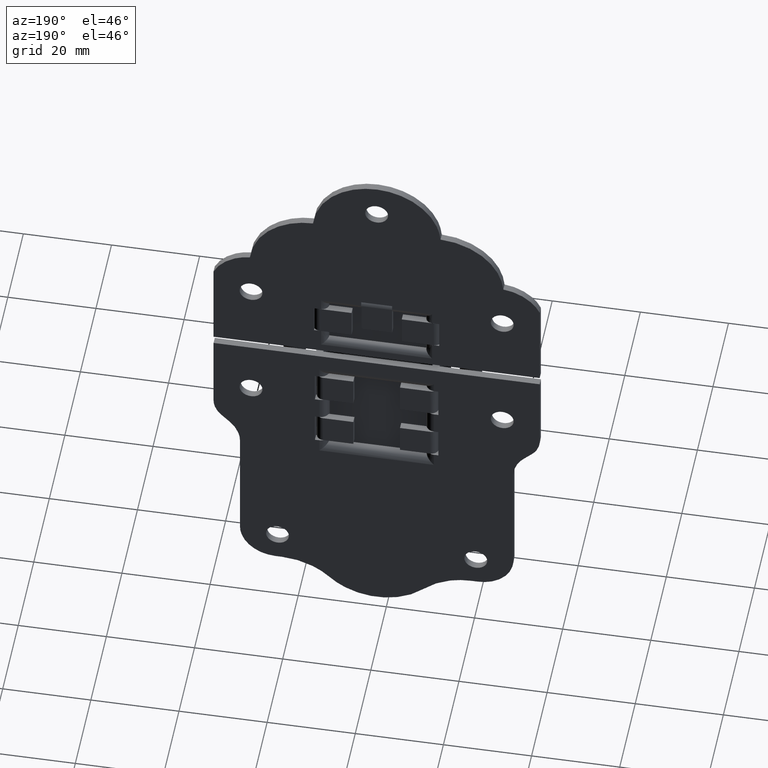
[diagram: clean part render]
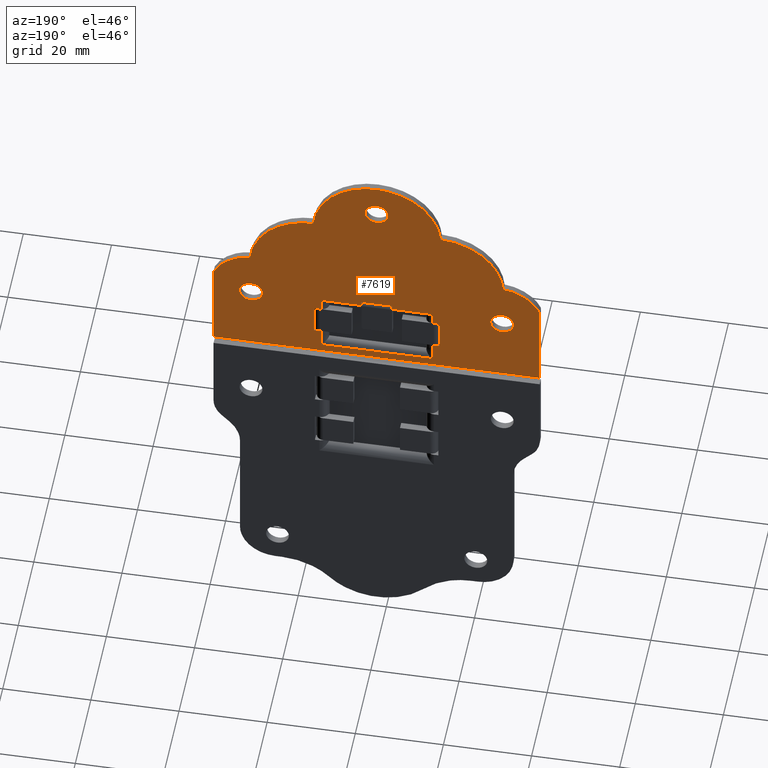
[diagram: same view with one face highlighted and labeled with its STEP entity id]
A machine part, auxiliary view. The second image highlights one B-rep face of the part: STEP entity #7619.
In plain terms, the highlighted face is a freeform B-spline surface patch.
Its self-contained STEP definition (entity closure, byte-faithful):
#3076=CARTESIAN_POINT('',(31.095150475863989,12.500000000000000,44.841273796671999));
#3077=VERTEX_POINT('',#3076);
#3083=CARTESIAN_POINT('',(28.500000000000000,12.500000000000000,42.399999999999999));
#3084=VERTEX_POINT('',#3083);
#3085=CARTESIAN_POINT('',(28.500000000000000,12.500000000000000,42.399999999999999));
#3086=CARTESIAN_POINT('',(30.945835772940004,12.499999999999996,42.399999999999999));
#3087=CARTESIAN_POINT('',(31.095150475863985,12.500000000000004,44.841273796672006));
#3095=(BOUNDED_CURVE()B_SPLINE_CURVE(2,(#3085,#3086,#3087),.UNSPECIFIED.,.F.,.U.)B_SPLINE_CURVE_WITH_KNOTS((3,3),(0.500000000000000,0.739332962170511),.UNSPECIFIED.)CURVE()GEOMETRIC_REPRESENTATION_ITEM()RATIONAL_B_SPLINE_CURVE((1.0,0.719603993366883,0.976072041520055))REPRESENTATION_ITEM(''));
#3096=EDGE_CURVE('',#3084,#3077,#3095,.T.);
#3098=CARTESIAN_POINT('',(25.918175231523769,12.500000000000000,45.306889010690611));
#3099=VERTEX_POINT('',#3098);
#3100=CARTESIAN_POINT('',(25.918175231523772,12.499999999999996,45.306889010690611));
#3101=CARTESIAN_POINT('',(25.900000000000002,12.500000000000000,45.153982711684179));
#3102=CARTESIAN_POINT('',(25.899999999999999,12.500000000000000,45.0));
#3103=CARTESIAN_POINT('',(25.899999999999999,12.500000000000000,42.400000000000006));
#3104=CARTESIAN_POINT('',(28.500000000000000,12.500000000000000,42.399999999999999));
#3112=(BOUNDED_CURVE()B_SPLINE_CURVE(2,(#3100,#3101,#3102,#3103,#3104),.UNSPECIFIED.,.F.,.U.)B_SPLINE_CURVE_WITH_KNOTS((3,2,3),(0.229562473439313,0.250000000000000,0.500000000000000),.UNSPECIFIED.)CURVE()GEOMETRIC_REPRESENTATION_ITEM()RATIONAL_B_SPLINE_CURVE((0.956026754038274,0.976055948244220,1.0,0.707106781186548,1.0))REPRESENTATION_ITEM(''));
#3113=EDGE_CURVE('',#3099,#3084,#3112,.T.);
#3157=CARTESIAN_POINT('',(28.500000000000000,12.500000000000000,47.599999999999987));
#3158=VERTEX_POINT('',#3157);
#3159=CARTESIAN_POINT('',(28.500000000000000,12.500000000000000,47.599999999999987));
#3160=CARTESIAN_POINT('',(26.190746233576778,12.500000000000000,47.599999999999987));
#3161=CARTESIAN_POINT('',(25.918175231523776,12.499999999999998,45.306889010690611));
#3169=(BOUNDED_CURVE()B_SPLINE_CURVE(2,(#3159,#3160,#3161),.UNSPECIFIED.,.F.,.U.)B_SPLINE_CURVE_WITH_KNOTS((3,3),(0.0,0.229562473439313),.UNSPECIFIED.)CURVE()GEOMETRIC_REPRESENTATION_ITEM()RATIONAL_B_SPLINE_CURVE((1.0,0.731050832942328,0.956026754038274))REPRESENTATION_ITEM(''));
#3170=EDGE_CURVE('',#3158,#3099,#3169,.T.);
#3172=CARTESIAN_POINT('',(31.095150475863989,12.499999999999998,44.841273796671999));
#3173=CARTESIAN_POINT('',(31.100000000000001,12.499999999999998,44.920562814884775));
#3174=CARTESIAN_POINT('',(31.100000000000001,12.500000000000000,45.0));
#3175=CARTESIAN_POINT('',(31.100000000000001,12.500000000000000,47.599999999999980));
#3176=CARTESIAN_POINT('',(28.500000000000000,12.500000000000000,47.599999999999987));
#3184=(BOUNDED_CURVE()B_SPLINE_CURVE(2,(#3172,#3173,#3174,#3175,#3176),.UNSPECIFIED.,.F.,.U.)B_SPLINE_CURVE_WITH_KNOTS((3,2,3),(0.739332962170510,0.750000000000000,1.0),.UNSPECIFIED.)CURVE()GEOMETRIC_REPRESENTATION_ITEM()RATIONAL_B_SPLINE_CURVE((0.976072041520053,0.987502787819663,1.0,0.707106781186548,1.0))REPRESENTATION_ITEM(''));
#3185=EDGE_CURVE('',#3077,#3158,#3184,.T.);
#3262=CARTESIAN_POINT('',(2.595150475863986,12.500000000000000,74.841273796671999));
#3263=VERTEX_POINT('',#3262);
#3269=CARTESIAN_POINT('',(0.0,12.500000000000000,72.399999999999991));
#3270=VERTEX_POINT('',#3269);
#3271=CARTESIAN_POINT('',(0.0,12.500000000000000,72.399999999999991));
#3272=CARTESIAN_POINT('',(2.445835772940012,12.499999999999996,72.400000000000006));
#3273=CARTESIAN_POINT('',(2.595150475863987,12.500000000000004,74.841273796671999));
#3281=(BOUNDED_CURVE()B_SPLINE_CURVE(2,(#3271,#3272,#3273),.UNSPECIFIED.,.F.,.U.)B_SPLINE_CURVE_WITH_KNOTS((3,3),(0.500000000000000,0.739332962170511),.UNSPECIFIED.)CURVE()GEOMETRIC_REPRESENTATION_ITEM()RATIONAL_B_SPLINE_CURVE((1.0,0.719603993366883,0.976072041520055))REPRESENTATION_ITEM(''));
#3282=EDGE_CURVE('',#3270,#3263,#3281,.T.);
#3284=CARTESIAN_POINT('',(-2.581824768476229,12.500000000000000,75.306889010690611));
#3285=VERTEX_POINT('',#3284);
#3286=CARTESIAN_POINT('',(-2.581824768476229,12.500000000000004,75.306889010690611));
#3287=CARTESIAN_POINT('',(-2.600000000000000,12.500000000000002,75.153982711684165));
#3288=CARTESIAN_POINT('',(-2.600000000000000,12.500000000000000,75.0));
#3289=CARTESIAN_POINT('',(-2.600000000000001,12.500000000000000,72.399999999999991));
#3290=CARTESIAN_POINT('',(0.0,12.500000000000000,72.399999999999991));
#3298=(BOUNDED_CURVE()B_SPLINE_CURVE(2,(#3286,#3287,#3288,#3289,#3290),.UNSPECIFIED.,.F.,.U.)B_SPLINE_CURVE_WITH_KNOTS((3,2,3),(0.229562473439314,0.250000000000000,0.500000000000000),.UNSPECIFIED.)CURVE()GEOMETRIC_REPRESENTATION_ITEM()RATIONAL_B_SPLINE_CURVE((0.956026754038275,0.976055948244221,1.0,0.707106781186548,1.0))REPRESENTATION_ITEM(''));
#3299=EDGE_CURVE('',#3285,#3270,#3298,.T.);
#3343=CARTESIAN_POINT('',(0.0,12.500000000000000,77.600000000000009));
#3344=VERTEX_POINT('',#3343);
#3345=CARTESIAN_POINT('',(0.0,12.500000000000000,77.600000000000009));
#3346=CARTESIAN_POINT('',(-2.309253766423237,12.500000000000002,77.600000000000009));
#3347=CARTESIAN_POINT('',(-2.581824768476229,12.500000000000004,75.306889010690611));
#3355=(BOUNDED_CURVE()B_SPLINE_CURVE(2,(#3345,#3346,#3347),.UNSPECIFIED.,.F.,.U.)B_SPLINE_CURVE_WITH_KNOTS((3,3),(0.0,0.229562473439314),.UNSPECIFIED.)CURVE()GEOMETRIC_REPRESENTATION_ITEM()RATIONAL_B_SPLINE_CURVE((1.0,0.731050832942327,0.956026754038275))REPRESENTATION_ITEM(''));
#3356=EDGE_CURVE('',#3344,#3285,#3355,.T.);
#3358=CARTESIAN_POINT('',(2.595150475863987,12.500000000000000,74.841273796671999));
#3359=CARTESIAN_POINT('',(2.600000000000001,12.500000000000000,74.920562814884789));
#3360=CARTESIAN_POINT('',(2.600000000000000,12.500000000000000,75.0));
#3361=CARTESIAN_POINT('',(2.600000000000001,12.500000000000000,77.600000000000009));
#3362=CARTESIAN_POINT('',(0.0,12.500000000000000,77.600000000000009));
#3370=(BOUNDED_CURVE()B_SPLINE_CURVE(2,(#3358,#3359,#3360,#3361,#3362),.UNSPECIFIED.,.F.,.U.)B_SPLINE_CURVE_WITH_KNOTS((3,2,3),(0.739332962170510,0.750000000000000,1.0),.UNSPECIFIED.)CURVE()GEOMETRIC_REPRESENTATION_ITEM()RATIONAL_B_SPLINE_CURVE((0.976072041520053,0.987502787819663,1.0,0.707106781186548,1.0))REPRESENTATION_ITEM(''));
#3371=EDGE_CURVE('',#3263,#3344,#3370,.T.);
#3448=CARTESIAN_POINT('',(-25.904849524136011,12.500000000000000,44.841273796671999));
#3449=VERTEX_POINT('',#3448);
#3455=CARTESIAN_POINT('',(-28.500000000000000,12.500000000000000,42.399999999999999));
#3456=VERTEX_POINT('',#3455);
#3457=CARTESIAN_POINT('',(-28.500000000000000,12.500000000000000,42.399999999999999));
#3458=CARTESIAN_POINT('',(-26.054164227059982,12.499999999999996,42.399999999999999));
#3459=CARTESIAN_POINT('',(-25.904849524136008,12.500000000000004,44.841273796672006));
#3467=(BOUNDED_CURVE()B_SPLINE_CURVE(2,(#3457,#3458,#3459),.UNSPECIFIED.,.F.,.U.)B_SPLINE_CURVE_WITH_KNOTS((3,3),(0.500000000000000,0.739332962170511),.UNSPECIFIED.)CURVE()GEOMETRIC_REPRESENTATION_ITEM()RATIONAL_B_SPLINE_CURVE((1.0,0.719603993366883,0.976072041520055))REPRESENTATION_ITEM(''));
#3468=EDGE_CURVE('',#3456,#3449,#3467,.T.);
#3470=CARTESIAN_POINT('',(-31.081824768476231,12.500000000000000,45.306889010690611));
#3471=VERTEX_POINT('',#3470);
#3472=CARTESIAN_POINT('',(-31.081824768476235,12.499999999999995,45.306889010690611));
#3473=CARTESIAN_POINT('',(-31.100000000000005,12.499999999999998,45.153982711684186));
#3474=CARTESIAN_POINT('',(-31.100000000000001,12.500000000000000,45.0));
#3475=CARTESIAN_POINT('',(-31.100000000000001,12.500000000000000,42.400000000000006));
#3476=CARTESIAN_POINT('',(-28.500000000000000,12.500000000000000,42.399999999999999));
#3484=(BOUNDED_CURVE()B_SPLINE_CURVE(2,(#3472,#3473,#3474,#3475,#3476),.UNSPECIFIED.,.F.,.U.)B_SPLINE_CURVE_WITH_KNOTS((3,2,3),(0.229562473439313,0.250000000000000,0.500000000000000),.UNSPECIFIED.)CURVE()GEOMETRIC_REPRESENTATION_ITEM()RATIONAL_B_SPLINE_CURVE((0.956026754038274,0.976055948244220,1.0,0.707106781186548,1.0))REPRESENTATION_ITEM(''));
#3485=EDGE_CURVE('',#3471,#3456,#3484,.T.);
#3529=CARTESIAN_POINT('',(-28.500000000000000,12.500000000000000,47.599999999999987));
#3530=VERTEX_POINT('',#3529);
#3531=CARTESIAN_POINT('',(-28.500000000000000,12.500000000000000,47.599999999999987));
#3532=CARTESIAN_POINT('',(-30.809253766423229,12.500000000000000,47.599999999999994));
#3533=CARTESIAN_POINT('',(-31.081824768476235,12.499999999999995,45.306889010690611));
#3541=(BOUNDED_CURVE()B_SPLINE_CURVE(2,(#3531,#3532,#3533),.UNSPECIFIED.,.F.,.U.)B_SPLINE_CURVE_WITH_KNOTS((3,3),(0.0,0.229562473439313),.UNSPECIFIED.)CURVE()GEOMETRIC_REPRESENTATION_ITEM()RATIONAL_B_SPLINE_CURVE((1.0,0.731050832942327,0.956026754038274))REPRESENTATION_ITEM(''));
#3542=EDGE_CURVE('',#3530,#3471,#3541,.T.);
#3544=CARTESIAN_POINT('',(-25.904849524136011,12.499999999999998,44.841273796671999));
#3545=CARTESIAN_POINT('',(-25.900000000000002,12.499999999999998,44.920562814884775));
#3546=CARTESIAN_POINT('',(-25.899999999999999,12.500000000000000,45.0));
#3547=CARTESIAN_POINT('',(-25.899999999999999,12.500000000000000,47.599999999999980));
#3548=CARTESIAN_POINT('',(-28.500000000000000,12.500000000000000,47.599999999999987));
#3556=(BOUNDED_CURVE()B_SPLINE_CURVE(2,(#3544,#3545,#3546,#3547,#3548),.UNSPECIFIED.,.F.,.U.)B_SPLINE_CURVE_WITH_KNOTS((3,2,3),(0.739332962170510,0.750000000000000,1.0),.UNSPECIFIED.)CURVE()GEOMETRIC_REPRESENTATION_ITEM()RATIONAL_B_SPLINE_CURVE((0.976072041520053,0.987502787819663,1.0,0.707106781186548,1.0))REPRESENTATION_ITEM(''));
#3557=EDGE_CURVE('',#3449,#3530,#3556,.T.);
#3592=CARTESIAN_POINT('',(-12.600000000000000,12.500000000000000,45.100000000000001));
#3593=VERTEX_POINT('',#3592);
#3638=CARTESIAN_POINT('',(-12.600000000000000,12.500000000000000,42.259999999999998));
#3639=VERTEX_POINT('',#3638);
#3653=CARTESIAN_POINT('',(-12.600000000000000,12.500000000000000,45.100000000000001));
#3654=CARTESIAN_POINT('',(-12.600000000000000,12.500000000000000,42.259999999999998));
#3655=QUASI_UNIFORM_CURVE('',1,(#3653,#3654),.UNSPECIFIED.,.F.,.U.);
#3656=EDGE_CURVE('',#3593,#3639,#3655,.T.);
#3698=CARTESIAN_POINT('',(-3.510000000000000,12.500000000000000,45.100000000000001));
#3699=VERTEX_POINT('',#3698);
#3700=CARTESIAN_POINT('',(-3.510000000000000,12.500000000000000,45.100000000000001));
#3701=CARTESIAN_POINT('',(-12.600000000000000,12.500000000000000,45.100000000000001));
#3702=QUASI_UNIFORM_CURVE('',1,(#3700,#3701),.UNSPECIFIED.,.F.,.U.);
#3703=EDGE_CURVE('',#3699,#3593,#3702,.T.);
#3949=CARTESIAN_POINT('',(12.600000000000000,12.500000000000000,45.100000000000001));
#3950=VERTEX_POINT('',#3949);
#3964=CARTESIAN_POINT('',(12.600000000000000,12.500000000000000,42.259999999999998));
#3965=VERTEX_POINT('',#3964);
#3966=CARTESIAN_POINT('',(12.600000000000000,12.500000000000000,42.259999999999998));
#3967=CARTESIAN_POINT('',(12.600000000000000,12.500000000000000,45.100000000000001));
#3968=QUASI_UNIFORM_CURVE('',1,(#3966,#3967),.UNSPECIFIED.,.F.,.U.);
#3969=EDGE_CURVE('',#3965,#3950,#3968,.T.);
#4008=CARTESIAN_POINT('',(3.510000000000000,12.500000000000000,45.100000000000001));
#4009=VERTEX_POINT('',#4008);
#4025=CARTESIAN_POINT('',(12.600000000000000,12.500000000000000,45.100000000000001));
#4026=CARTESIAN_POINT('',(3.510000000000000,12.500000000000000,45.100000000000001));
#4027=QUASI_UNIFORM_CURVE('',1,(#4025,#4026),.UNSPECIFIED.,.F.,.U.);
#4028=EDGE_CURVE('',#3950,#4009,#4027,.T.);
#4075=CARTESIAN_POINT('',(12.600000000000000,12.500000000000000,30.899999999999999));
#4076=VERTEX_POINT('',#4075);
#4121=CARTESIAN_POINT('',(12.600000000000000,12.500000000000000,35.240000000000002));
#4122=VERTEX_POINT('',#4121);
#4136=CARTESIAN_POINT('',(12.600000000000000,12.500000000000000,30.899999999999999));
#4137=CARTESIAN_POINT('',(12.600000000000000,12.500000000000000,35.240000000000002));
#4138=QUASI_UNIFORM_CURVE('',1,(#4136,#4137),.UNSPECIFIED.,.F.,.U.);
#4139=EDGE_CURVE('',#4076,#4122,#4138,.T.);
#4158=CARTESIAN_POINT('',(-12.600000000000000,12.500000000000000,30.899999999999999));
#4159=VERTEX_POINT('',#4158);
#4181=CARTESIAN_POINT('',(-12.600000000000000,12.500000000000000,30.899999999999999));
#4182=CARTESIAN_POINT('',(12.600000000000000,12.500000000000000,30.899999999999999));
#4183=QUASI_UNIFORM_CURVE('',1,(#4181,#4182),.UNSPECIFIED.,.F.,.U.);
#4184=EDGE_CURVE('',#4159,#4076,#4183,.T.);
#4226=CARTESIAN_POINT('',(-12.600000000000000,12.500000000000000,35.240000000000002));
#4227=VERTEX_POINT('',#4226);
#4228=CARTESIAN_POINT('',(-12.600000000000000,12.500000000000000,35.240000000000002));
#4229=CARTESIAN_POINT('',(-12.600000000000000,12.500000000000000,30.899999999999999));
#4230=QUASI_UNIFORM_CURVE('',1,(#4228,#4229),.UNSPECIFIED.,.F.,.U.);
#4231=EDGE_CURVE('',#4227,#4159,#4230,.T.);
#6540=CARTESIAN_POINT('',(-14.210000000000001,12.500000000000000,35.240000000000002));
#6541=VERTEX_POINT('',#6540);
#6542=CARTESIAN_POINT('',(-12.600000000000000,12.500000000000000,35.240000000000002));
#6543=CARTESIAN_POINT('',(-14.210000000000001,12.500000000000000,35.240000000000002));
#6544=QUASI_UNIFORM_CURVE('',1,(#6542,#6543),.UNSPECIFIED.,.F.,.U.);
#6545=EDGE_CURVE('',#4227,#6541,#6544,.T.);
#6560=CARTESIAN_POINT('',(-14.210000000000001,12.500000000000000,42.259999999999998));
#6561=VERTEX_POINT('',#6560);
#6562=CARTESIAN_POINT('',(-14.210000000000001,12.500000000000000,42.259999999999998));
#6563=CARTESIAN_POINT('',(-12.600000000000000,12.500000000000000,42.259999999999998));
#6564=QUASI_UNIFORM_CURVE('',1,(#6562,#6563),.UNSPECIFIED.,.F.,.U.);
#6565=EDGE_CURVE('',#6561,#3639,#6564,.T.);
#6582=CARTESIAN_POINT('',(-14.210000000000001,12.500000000000000,35.240000000000002));
#6583=CARTESIAN_POINT('',(-14.210000000000001,12.500000000000000,42.259999999999998));
#6584=QUASI_UNIFORM_CURVE('',1,(#6582,#6583),.UNSPECIFIED.,.F.,.U.);
#6585=EDGE_CURVE('',#6541,#6561,#6584,.T.);
#6638=CARTESIAN_POINT('',(3.510000000000000,12.500000000000000,46.109999999999999));
#6639=VERTEX_POINT('',#6638);
#6640=CARTESIAN_POINT('',(3.510000000000000,12.500000000000000,46.109999999999999));
#6641=CARTESIAN_POINT('',(3.510000000000000,12.500000000000000,45.100000000000001));
#6642=QUASI_UNIFORM_CURVE('',1,(#6640,#6641),.UNSPECIFIED.,.F.,.U.);
#6643=EDGE_CURVE('',#6639,#4009,#6642,.T.);
#6662=CARTESIAN_POINT('',(-3.510000000000000,12.500000000000000,46.109999999999999));
#6663=VERTEX_POINT('',#6662);
#6664=CARTESIAN_POINT('',(-3.510000000000000,12.500000000000000,45.100000000000001));
#6665=CARTESIAN_POINT('',(-3.510000000000000,12.500000000000000,46.109999999999999));
#6666=QUASI_UNIFORM_CURVE('',1,(#6664,#6665),.UNSPECIFIED.,.F.,.U.);
#6667=EDGE_CURVE('',#3699,#6663,#6666,.T.);
#6682=CARTESIAN_POINT('',(-3.510000000000000,12.500000000000000,46.109999999999999));
#6683=CARTESIAN_POINT('',(3.510000000000000,12.500000000000000,46.109999999999999));
#6684=QUASI_UNIFORM_CURVE('',1,(#6682,#6683),.UNSPECIFIED.,.F.,.U.);
#6685=EDGE_CURVE('',#6663,#6639,#6684,.T.);
#6738=CARTESIAN_POINT('',(14.210000000000001,12.500000000000000,35.240000000000002));
#6739=VERTEX_POINT('',#6738);
#6740=CARTESIAN_POINT('',(12.600000000000000,12.500000000000000,35.240000000000002));
#6741=CARTESIAN_POINT('',(14.210000000000001,12.500000000000000,35.240000000000002));
#6742=QUASI_UNIFORM_CURVE('',1,(#6740,#6741),.UNSPECIFIED.,.F.,.U.);
#6743=EDGE_CURVE('',#4122,#6739,#6742,.T.);
#6762=CARTESIAN_POINT('',(14.210000000000001,12.500000000000000,42.259999999999998));
#6763=VERTEX_POINT('',#6762);
#6764=CARTESIAN_POINT('',(14.210000000000001,12.500000000000000,42.259999999999998));
#6765=CARTESIAN_POINT('',(12.600000000000000,12.500000000000000,42.259999999999998));
#6766=QUASI_UNIFORM_CURVE('',1,(#6764,#6765),.UNSPECIFIED.,.F.,.U.);
#6767=EDGE_CURVE('',#6763,#3965,#6766,.T.);
#6785=CARTESIAN_POINT('',(14.210000000000001,12.500000000000000,35.240000000000002));
#6786=CARTESIAN_POINT('',(14.210000000000001,12.500000000000000,42.259999999999998));
#6787=QUASI_UNIFORM_CURVE('',1,(#6785,#6786),.UNSPECIFIED.,.F.,.U.);
#6788=EDGE_CURVE('',#6739,#6763,#6787,.T.);
#7150=CARTESIAN_POINT('',(37.0,12.500000000000000,50.000531814607101));
#7151=VERTEX_POINT('',#7150);
#7157=CARTESIAN_POINT('',(28.750459302145401,12.500000000000000,56.000243559326698));
#7158=VERTEX_POINT('',#7157);
#7159=CARTESIAN_POINT('',(37.000000000000092,12.500000000000000,50.000531814607143));
#7160=CARTESIAN_POINT('',(34.653985682245050,12.500000000000005,55.446158566480449));
#7161=CARTESIAN_POINT('',(28.750459302145401,12.500000000000000,56.000243559326677));
#7169=(BOUNDED_CURVE()B_SPLINE_CURVE(2,(#7159,#7160,#7161),.UNSPECIFIED.,.F.,.U.)CURVE()GEOMETRIC_REPRESENTATION_ITEM()QUASI_UNIFORM_CURVE()RATIONAL_B_SPLINE_CURVE((1.0,0.860157743170858,1.0))REPRESENTATION_ITEM(''));
#7170=EDGE_CURVE('',#7151,#7158,#7169,.T.);
#7192=CARTESIAN_POINT('',(37.0,12.500000000000000,29.0));
#7193=VERTEX_POINT('',#7192);
#7199=CARTESIAN_POINT('',(37.0,12.500000000000000,29.0));
#7200=CARTESIAN_POINT('',(37.0,12.500000000000000,50.000531814607101));
#7201=QUASI_UNIFORM_CURVE('',1,(#7199,#7200),.UNSPECIFIED.,.F.,.U.);
#7202=EDGE_CURVE('',#7193,#7151,#7201,.T.);
#7220=CARTESIAN_POINT('',(-37.0,12.500000000000000,29.0));
#7221=VERTEX_POINT('',#7220);
#7227=CARTESIAN_POINT('',(-37.0,12.500000000000000,29.0));
#7228=CARTESIAN_POINT('',(37.0,12.500000000000000,29.0));
#7229=QUASI_UNIFORM_CURVE('',1,(#7227,#7228),.UNSPECIFIED.,.F.,.U.);
#7230=EDGE_CURVE('',#7221,#7193,#7229,.T.);
#7248=CARTESIAN_POINT('',(-37.0,12.500000000000000,50.000531814607399));
#7249=VERTEX_POINT('',#7248);
#7255=CARTESIAN_POINT('',(-37.0,12.500000000000000,50.000531814607399));
#7256=CARTESIAN_POINT('',(-37.0,12.500000000000000,29.0));
#7257=QUASI_UNIFORM_CURVE('',1,(#7255,#7256),.UNSPECIFIED.,.F.,.U.);
#7258=EDGE_CURVE('',#7249,#7221,#7257,.T.);
#7293=CARTESIAN_POINT('',(-28.749591841258251,12.500000000000000,56.000324938145397));
#7294=VERTEX_POINT('',#7293);
#7300=CARTESIAN_POINT('',(-28.749591841258258,12.500000000000000,56.000324938145397));
#7301=CARTESIAN_POINT('',(-34.653752716378712,12.500000000000004,55.446699332640065));
#7302=CARTESIAN_POINT('',(-36.999999999999979,12.500000000000000,50.000531814607392));
#7310=(BOUNDED_CURVE()B_SPLINE_CURVE(2,(#7300,#7301,#7302),.UNSPECIFIED.,.F.,.U.)CURVE()GEOMETRIC_REPRESENTATION_ITEM()QUASI_UNIFORM_CURVE()RATIONAL_B_SPLINE_CURVE((1.0,0.860135523753254,1.0))REPRESENTATION_ITEM(''));
#7311=EDGE_CURVE('',#7294,#7249,#7310,.T.);
#7346=CARTESIAN_POINT('',(-14.499448533091400,12.500000000000000,69.500399288528001));
#7347=VERTEX_POINT('',#7346);
#7353=CARTESIAN_POINT('',(-14.499448533091410,12.500000000000000,69.500399288527987));
#7354=CARTESIAN_POINT('',(-27.831573734424918,12.500000000000000,69.302281774969700));
#7355=CARTESIAN_POINT('',(-28.749591841258241,12.500000000000000,56.000324938145397));
#7363=(BOUNDED_CURVE()B_SPLINE_CURVE(2,(#7353,#7354,#7355),.UNSPECIFIED.,.F.,.U.)CURVE()GEOMETRIC_REPRESENTATION_ITEM()QUASI_UNIFORM_CURVE()RATIONAL_B_SPLINE_CURVE((1.0,0.736092947840625,1.0))REPRESENTATION_ITEM(''));
#7364=EDGE_CURVE('',#7347,#7294,#7363,.T.);
#7405=CARTESIAN_POINT('',(14.431527304478459,12.500000000000000,69.499259627616894));
#7406=VERTEX_POINT('',#7405);
#7412=CARTESIAN_POINT('',(14.431527304478459,12.500000000000000,69.499259627616880));
#7413=CARTESIAN_POINT('',(13.498950715773795,12.500000000000002,82.999466915684152));
#7414=CARTESIAN_POINT('',(-0.033428810030874,12.500000000000000,82.999999988749721));
#7415=CARTESIAN_POINT('',(-13.565808335835557,12.500000000000002,83.000533061815304));
#7416=CARTESIAN_POINT('',(-14.499448533091391,12.500000000000000,69.500399288528001));
#7424=(BOUNDED_CURVE()B_SPLINE_CURVE(2,(#7412,#7413,#7414,#7415,#7416),.UNSPECIFIED.,.F.,.U.)B_SPLINE_CURVE_WITH_KNOTS((3,2,3),(0.0,0.500000000000000,1.0),.UNSPECIFIED.)CURVE()GEOMETRIC_REPRESENTATION_ITEM()RATIONAL_B_SPLINE_CURVE((1.0,0.731079255547110,1.0,0.731079255547110,1.0))REPRESENTATION_ITEM(''));
#7425=EDGE_CURVE('',#7406,#7347,#7424,.T.);
#7459=CARTESIAN_POINT('',(28.750459302145419,12.500000000000000,56.000243559326698));
#7460=CARTESIAN_POINT('',(27.826402618885528,12.500000000000000,69.363893062423045));
#7461=CARTESIAN_POINT('',(14.431527304478459,12.500000000000000,69.499259627616937));
#7469=(BOUNDED_CURVE()B_SPLINE_CURVE(2,(#7459,#7460,#7461),.UNSPECIFIED.,.F.,.U.)CURVE()GEOMETRIC_REPRESENTATION_ITEM()QUASI_UNIFORM_CURVE()RATIONAL_B_SPLINE_CURVE((1.0,0.734527076236413,1.0))REPRESENTATION_ITEM(''));
#7470=EDGE_CURVE('',#7158,#7406,#7469,.T.);
#7568=CARTESIAN_POINT('',(-40.696299856573653,12.500000000000000,85.697299883570594));
#7569=CARTESIAN_POINT('',(40.696301841408307,12.500000000000000,85.697299883570594));
#7570=CARTESIAN_POINT('',(-40.696299856573653,12.500000000000000,26.302698656829410));
#7571=CARTESIAN_POINT('',(40.696301841408307,12.500000000000000,26.302698656829410));
#7572=B_SPLINE_SURFACE_WITH_KNOTS('',1,1,((#7568,#7570),(#7569,#7571)),.UNSPECIFIED.,.F.,.F.,.U.,(2,2),(2,2),(0.0,81.392601697981959),(0.0,59.394601226741187),.UNSPECIFIED.);
#7573=ORIENTED_EDGE('',*,*,#7470,.F.);
#7574=ORIENTED_EDGE('',*,*,#7170,.F.);
#7575=ORIENTED_EDGE('',*,*,#7202,.F.);
#7576=ORIENTED_EDGE('',*,*,#7230,.F.);
#7577=ORIENTED_EDGE('',*,*,#7258,.F.);
#7578=ORIENTED_EDGE('',*,*,#7311,.F.);
#7579=ORIENTED_EDGE('',*,*,#7364,.F.);
#7580=ORIENTED_EDGE('',*,*,#7425,.F.);
#7581=EDGE_LOOP('',(#7573,#7574,#7575,#7576,#7577,#7578,#7579,#7580));
#7582=FACE_OUTER_BOUND('',#7581,.T.);
#7583=ORIENTED_EDGE('',*,*,#6767,.T.);
#7584=ORIENTED_EDGE('',*,*,#3969,.T.);
#7585=ORIENTED_EDGE('',*,*,#4028,.T.);
#7586=ORIENTED_EDGE('',*,*,#6643,.F.);
#7587=ORIENTED_EDGE('',*,*,#6685,.F.);
#7588=ORIENTED_EDGE('',*,*,#6667,.F.);
#7589=ORIENTED_EDGE('',*,*,#3703,.T.);
#7590=ORIENTED_EDGE('',*,*,#3656,.T.);
#7591=ORIENTED_EDGE('',*,*,#6565,.F.);
#7592=ORIENTED_EDGE('',*,*,#6585,.F.);
#7593=ORIENTED_EDGE('',*,*,#6545,.F.);
#7594=ORIENTED_EDGE('',*,*,#4231,.T.);
#7595=ORIENTED_EDGE('',*,*,#4184,.T.);
#7596=ORIENTED_EDGE('',*,*,#4139,.T.);
#7597=ORIENTED_EDGE('',*,*,#6743,.T.);
#7598=ORIENTED_EDGE('',*,*,#6788,.T.);
#7599=EDGE_LOOP('',(#7583,#7584,#7585,#7586,#7587,#7588,#7589,#7590,#7591,#7592,#7593,#7594,#7595,#7596,#7597,#7598));
#7600=FACE_BOUND('',#7599,.T.);
#7601=ORIENTED_EDGE('',*,*,#3468,.T.);
#7602=ORIENTED_EDGE('',*,*,#3557,.T.);
#7603=ORIENTED_EDGE('',*,*,#3542,.T.);
#7604=ORIENTED_EDGE('',*,*,#3485,.T.);
#7605=EDGE_LOOP('',(#7601,#7602,#7603,#7604));
#7606=FACE_BOUND('',#7605,.T.);
#7607=ORIENTED_EDGE('',*,*,#3282,.T.);
#7608=ORIENTED_EDGE('',*,*,#3371,.T.);
#7609=ORIENTED_EDGE('',*,*,#3356,.T.);
#7610=ORIENTED_EDGE('',*,*,#3299,.T.);
#7611=EDGE_LOOP('',(#7607,#7608,#7609,#7610));
#7612=FACE_BOUND('',#7611,.T.);
#7613=ORIENTED_EDGE('',*,*,#3096,.T.);
#7614=ORIENTED_EDGE('',*,*,#3185,.T.);
#7615=ORIENTED_EDGE('',*,*,#3170,.T.);
#7616=ORIENTED_EDGE('',*,*,#3113,.T.);
#7617=EDGE_LOOP('',(#7613,#7614,#7615,#7616));
#7618=FACE_BOUND('',#7617,.T.);
#7619=ADVANCED_FACE('',(#7582,#7600,#7606,#7612,#7618),#7572,.T.);